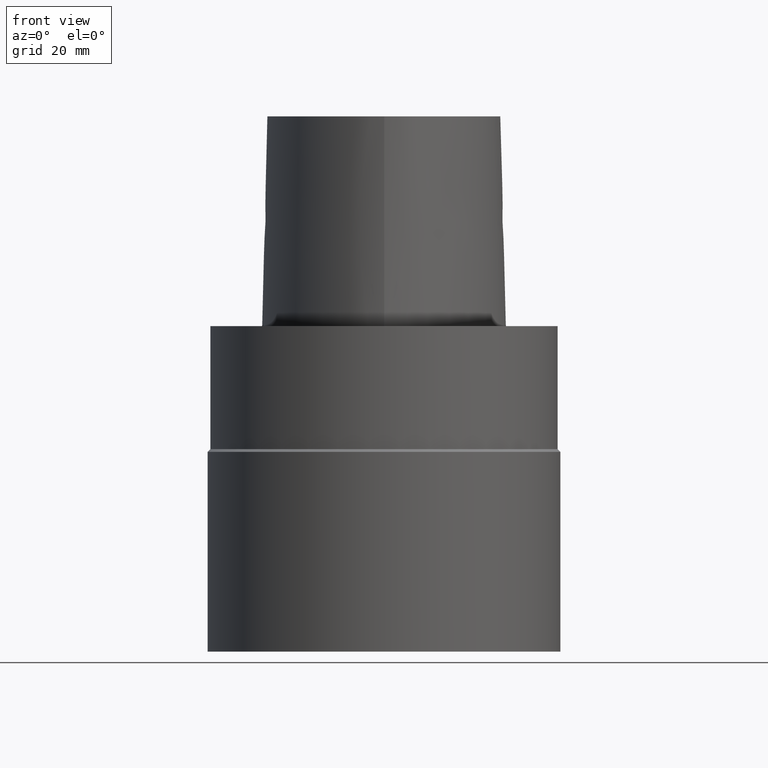
[diagram: clean part render]
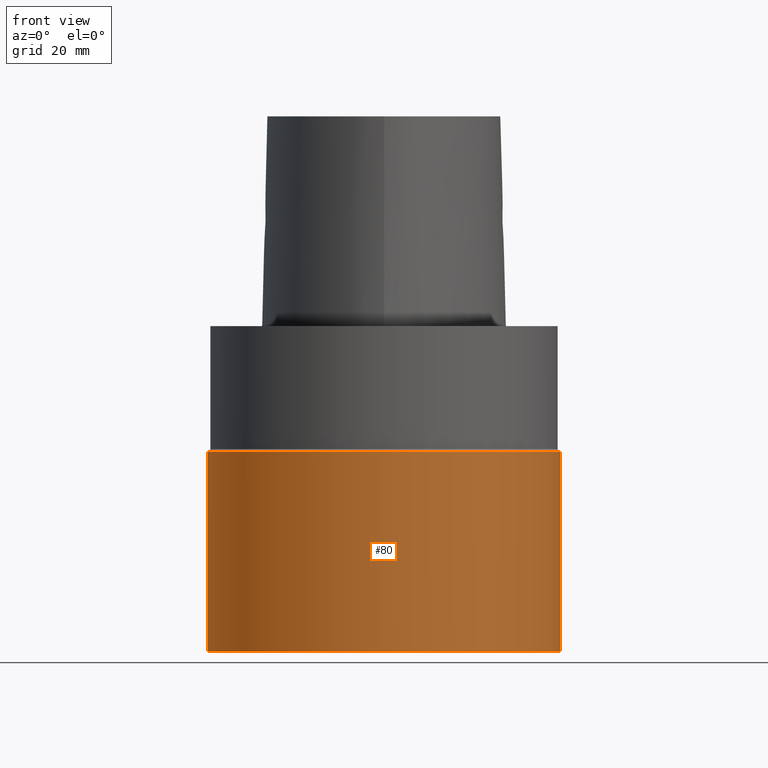
[diagram: same view with one face highlighted and labeled with its STEP entity id]
A machine part, front view. The second image highlights one B-rep face of the part: STEP entity #80.
In plain terms, the highlighted cylindrical surface (bore or boss wall) has radius 32 mm, axis along (-0, -0, 1).
Its self-contained STEP definition (entity closure, byte-faithful):
#80=ADVANCED_FACE('',(#96,#97),#98,.T.);
#96=FACE_BOUND('',#256,.T.);
#97=FACE_BOUND('',#257,.T.);
#98=CYLINDRICAL_SURFACE('',#258,32.0);
#256=EDGE_LOOP('',(#291));
#257=EDGE_LOOP('',(#292));
#258=AXIS2_PLACEMENT_3D('',#293,#294,#295);
#291=ORIENTED_EDGE('',*,*,#322,.F.);
#292=ORIENTED_EDGE('',*,*,#320,.T.);
#293=CARTESIAN_POINT('',(2.50463232553118E-015,5.00926465106235E-015,-40.90375));
#294=DIRECTION('',(-6.12323399573677E-017,-1.22464679914735E-016,1.0));
#295=DIRECTION('',(-1.23259516440783E-032,1.0,1.22464679914735E-016));
#320=EDGE_CURVE('',#337,#337,#338,.T.);
#322=EDGE_CURVE('',#341,#341,#342,.T.);
#337=VERTEX_POINT('',#424);
#338=CIRCLE('',#425,32.0);
#341=VERTEX_POINT('',#428);
#342=CIRCLE('',#429,32.0);
#424=CARTESIAN_POINT('',(1.39655659357766E-015,32.0,-22.8075));
#425=AXIS2_PLACEMENT_3D('',#438,#439,#440);
#428=CARTESIAN_POINT('',(3.61270805748469E-015,32.0,-59.0));
#429=AXIS2_PLACEMENT_3D('',#444,#445,#446);
#438=CARTESIAN_POINT('',(1.39655659357766E-015,2.79311318715533E-015,-22.8075));
#439=DIRECTION('',(6.12323399573677E-017,1.22464679914735E-016,-1.0));
#440=DIRECTION('',(-1.23259516440783E-032,1.0,1.22464679914735E-016));
#444=CARTESIAN_POINT('',(3.61270805748469E-015,7.22541611496938E-015,-59.0));
#445=DIRECTION('',(6.12323399573677E-017,1.22464679914735E-016,-1.0));
#446=DIRECTION('',(-1.23259516440783E-032,1.0,1.22464679914735E-016));